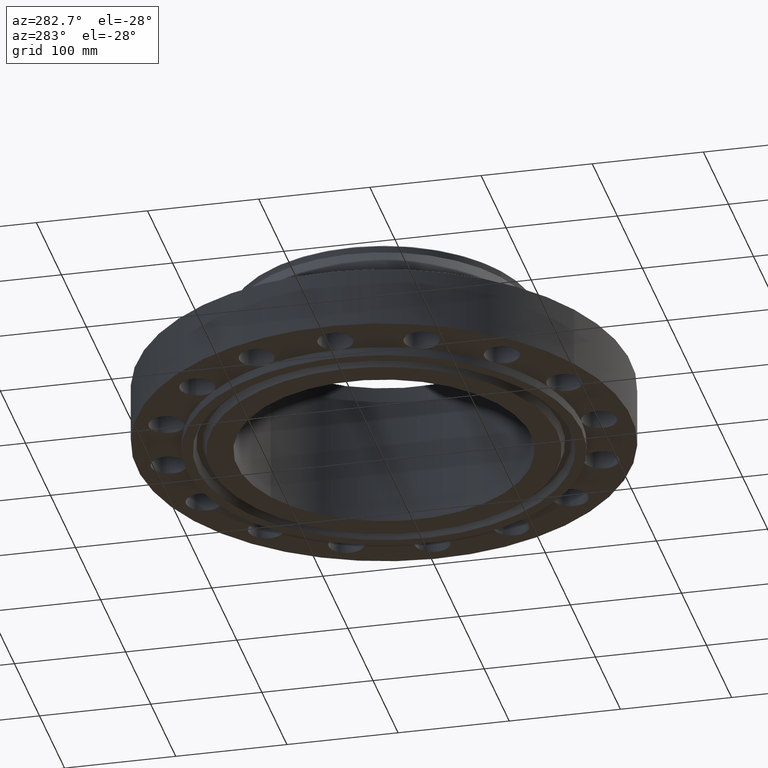
[diagram: clean part render]
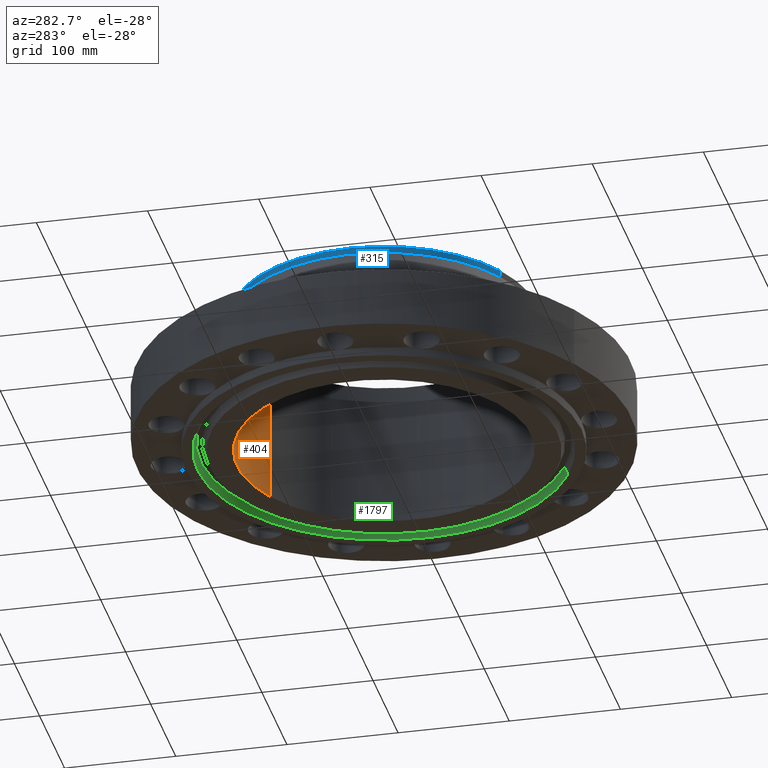
[diagram: same view with three faces highlighted in distinct colors, each labeled with its STEP entity id]
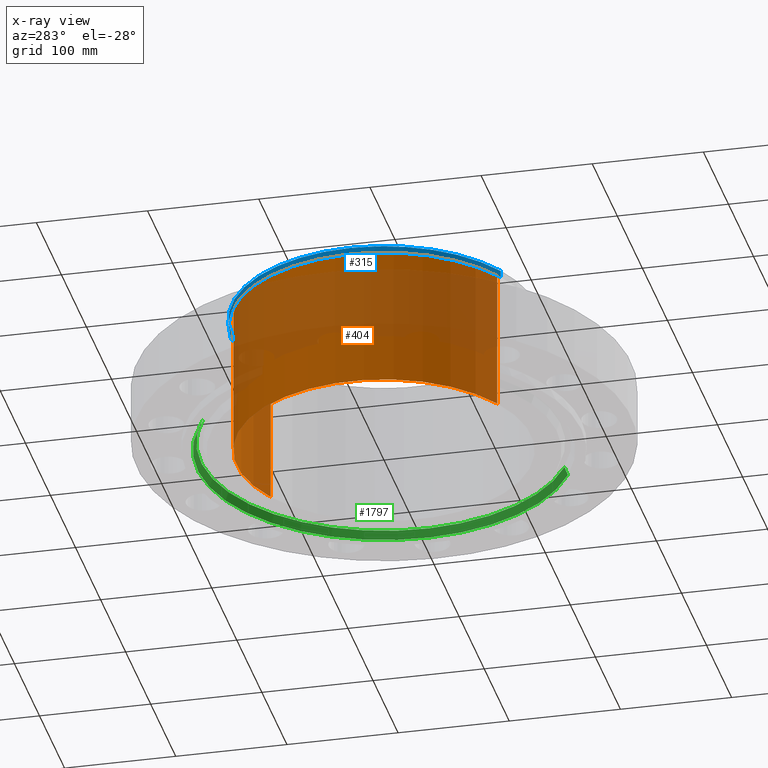
[diagram: x-ray of the same camera — body ghosted, the three highlighted faces saturated]
A machine part, auxiliary view with three faces highlighted in distinct colors.
The next image is the same camera in x-ray (body ghosted, the three faces saturated) — at least one of them is partly hidden behind the body in this view.
Their STEP definitions:

[orange] entity #404 — the highlighted cylindrical surface (partial cylindrical patch) has radius 132.334 mm, axis along (0, 0, -1).
#351=AXIS2_PLACEMENT_3D('Cylinder Axis2P3D',#348,#349,#350) ;
#390=AXIS2_PLACEMENT_3D('Circle Axis2P3D',#388,#389,$) ;
#395=AXIS2_PLACEMENT_3D('Circle Axis2P3D',#393,#394,$) ;
#348=CARTESIAN_POINT('Axis2P3D Location',(0.,0.,2.28350000001)) ;
#357=CARTESIAN_POINT('Vertex',(2.49780705614,4.57220514747,4.88000000002)) ;
#359=CARTESIAN_POINT('Vertex',(-2.49780705614,-4.57220514747,4.88000000002)) ;
#362=CARTESIAN_POINT('Line Origine',(2.49780705614,4.57220514747,2.28350000001)) ;
#366=CARTESIAN_POINT('Vertex',(2.49780705614,4.57220514747,-0.313000000001)) ;
#373=CARTESIAN_POINT('Vertex',(-2.49780705614,-4.57220514747,-0.313000000001)) ;
#376=CARTESIAN_POINT('Line Origine',(-2.49780705614,-4.57220514747,2.28350000001)) ;
#388=CARTESIAN_POINT('Axis2P3D Location',(0.,0.,4.88000000002)) ;
#393=CARTESIAN_POINT('Axis2P3D Location',(0.,0.,-0.313000000001)) ;
#349=DIRECTION('Axis2P3D Direction',(0.,0.,-0.0393700787402)) ;
#350=DIRECTION('Axis2P3D XDirection',(-0.0188750212049,-0.0345504945626,0.)) ;
#363=DIRECTION('Vector Direction',(0.,0.,-0.0393700787402)) ;
#377=DIRECTION('Vector Direction',(0.,0.,-0.0393700787402)) ;
#389=DIRECTION('Axis2P3D Direction',(0.,0.,-0.0393700787402)) ;
#394=DIRECTION('Axis2P3D Direction',(0.,0.,-0.0393700787402)) ;
#364=VECTOR('Line Direction',#363,0.0393700787402) ;
#378=VECTOR('Line Direction',#377,0.0393700787402) ;
#399=ORIENTED_EDGE('',*,*,#392,.F.) ;
#400=ORIENTED_EDGE('',*,*,#380,.T.) ;
#401=ORIENTED_EDGE('',*,*,#397,.T.) ;
#402=ORIENTED_EDGE('',*,*,#368,.F.) ;
#404=ADVANCED_FACE('PartBody',(#403),#352,.F.) ;
#391=CIRCLE('generated circle',#390,5.21000000002) ;
#396=CIRCLE('generated circle',#395,5.21000000002) ;
#352=CYLINDRICAL_SURFACE('generated cylinder',#351,5.21000000002) ;
#368=EDGE_CURVE('',#358,#367,#365,.T.) ;
#380=EDGE_CURVE('',#360,#374,#379,.T.) ;
#392=EDGE_CURVE('',#360,#358,#391,.T.) ;
#397=EDGE_CURVE('',#374,#367,#396,.T.) ;
#398=EDGE_LOOP('',(#399,#400,#401,#402)) ;
#403=FACE_OUTER_BOUND('',#398,.T.) ;
#365=LINE('Line',#362,#364) ;
#379=LINE('Line',#376,#378) ;
#358=VERTEX_POINT('',#357) ;
#360=VERTEX_POINT('',#359) ;
#367=VERTEX_POINT('',#366) ;
#374=VERTEX_POINT('',#373) ;

[blue] entity #315 — the highlighted cylindrical surface (partial cylindrical patch) has radius 136.525 mm, axis along (0, 0, -1).
#247=AXIS2_PLACEMENT_3D('Circle Axis2P3D',#245,#246,$) ;
#260=AXIS2_PLACEMENT_3D('Cylinder Axis2P3D',#257,#258,#259) ;
#298=AXIS2_PLACEMENT_3D('Circle Axis2P3D',#296,#297,$) ;
#305=AXIS2_PLACEMENT_3D('Circle Axis2P3D',#303,#304,$) ;
#223=CARTESIAN_POINT('Vertex',(2.57691227001,4.71700627018,4.57759002243)) ;
#230=CARTESIAN_POINT('Vertex',(-2.57691227001,-4.71700627018,4.57759002243)) ;
#245=CARTESIAN_POINT('Axis2P3D Location',(0.,0.,4.57759002243)) ;
#257=CARTESIAN_POINT('Axis2P3D Location',(0.,0.,2.28350000001)) ;
#262=CARTESIAN_POINT('Line Origine',(-2.57691227001,-4.71700627018,4.69570025865)) ;
#266=CARTESIAN_POINT('Vertex',(-2.57691227001,-4.71700627018,4.81381049487)) ;
#269=CARTESIAN_POINT('Line Origine',(2.57691227001,4.71700627018,4.69570025865)) ;
#273=CARTESIAN_POINT('Vertex',(2.57691227001,4.71700627018,4.81381049487)) ;
#296=CARTESIAN_POINT('Axis2P3D Location',(0.,0.,4.81381049487)) ;
#300=CARTESIAN_POINT('Vertex',(-2.57691227001,4.71700627018,4.81381049487)) ;
#303=CARTESIAN_POINT('Axis2P3D Location',(0.,0.,4.81381049487)) ;
#246=DIRECTION('Axis2P3D Direction',(0.,0.,-0.0393700787402)) ;
#258=DIRECTION('Axis2P3D Direction',(0.,0.,-0.0393700787402)) ;
#259=DIRECTION('Axis2P3D XDirection',(-0.0188750212049,-0.0345504945626,0.)) ;
#263=DIRECTION('Vector Direction',(0.,0.,-0.0393700787402)) ;
#270=DIRECTION('Vector Direction',(0.,0.,-0.0393700787402)) ;
#297=DIRECTION('Axis2P3D Direction',(0.,0.,-0.0393700787402)) ;
#304=DIRECTION('Axis2P3D Direction',(0.,0.,-0.0393700787402)) ;
#264=VECTOR('Line Direction',#263,0.0393700787402) ;
#271=VECTOR('Line Direction',#270,0.0393700787402) ;
#309=ORIENTED_EDGE('',*,*,#275,.F.) ;
#310=ORIENTED_EDGE('',*,*,#249,.F.) ;
#311=ORIENTED_EDGE('',*,*,#268,.T.) ;
#312=ORIENTED_EDGE('',*,*,#302,.F.) ;
#313=ORIENTED_EDGE('',*,*,#307,.T.) ;
#315=ADVANCED_FACE('PartBody',(#314),#261,.T.) ;
#248=CIRCLE('generated circle',#247,5.37500000002) ;
#299=CIRCLE('generated circle',#298,5.37500000002) ;
#306=CIRCLE('generated circle',#305,5.37500000002) ;
#261=CYLINDRICAL_SURFACE('generated cylinder',#260,5.37500000002) ;
#249=EDGE_CURVE('',#231,#224,#248,.T.) ;
#268=EDGE_CURVE('',#231,#267,#265,.F.) ;
#275=EDGE_CURVE('',#224,#274,#272,.F.) ;
#302=EDGE_CURVE('',#301,#267,#299,.F.) ;
#307=EDGE_CURVE('',#301,#274,#306,.T.) ;
#308=EDGE_LOOP('',(#309,#310,#311,#312,#313)) ;
#314=FACE_OUTER_BOUND('',#308,.T.) ;
#265=LINE('Line',#262,#264) ;
#272=LINE('Line',#269,#271) ;
#224=VERTEX_POINT('',#223) ;
#231=VERTEX_POINT('',#230) ;
#267=VERTEX_POINT('',#266) ;
#274=VERTEX_POINT('',#273) ;
#301=VERTEX_POINT('',#300) ;

[green] entity #1797 — the highlighted conical surface has half-angle 23 deg.
#1658=AXIS2_PLACEMENT_3D('Circle Axis2P3D',#1656,#1657,$) ;
#1732=AXIS2_PLACEMENT_3D('Cone Axis2P3D',#1729,#1730,#1731) ;
#1753=AXIS2_PLACEMENT_3D('Circle Axis2P3D',#1751,#1752,$) ;
#1651=CARTESIAN_POINT('Vertex',(3.16876309742,-5.80038194284,-0.313000000001)) ;
#1653=CARTESIAN_POINT('Vertex',(-3.16876309742,5.80038194284,-0.313000000001)) ;
#1656=CARTESIAN_POINT('Axis2P3D Location',(0.,-1.1189649382E-015,-0.313000000001)) ;
#1698=CARTESIAN_POINT('Vertex',(-3.10890997382,5.69082153499,-0.0188873350169)) ;
#1700=CARTESIAN_POINT('Vertex',(3.10890997382,-5.69082153499,-0.0188873350169)) ;
#1729=CARTESIAN_POINT('Axis2P3D Location',(0.,0.,-0.0188873350169)) ;
#1734=CARTESIAN_POINT('Line Origine',(-3.13883653562,5.74560173892,-0.165943667509)) ;
#1739=CARTESIAN_POINT('Line Origine',(3.13883653562,-5.74560173892,-0.165943667509)) ;
#1751=CARTESIAN_POINT('Axis2P3D Location',(0.,0.,-0.0188873350169)) ;
#1657=DIRECTION('Axis2P3D Direction',(0.,0.,-0.0393700787402)) ;
#1730=DIRECTION('Axis2P3D Direction',(-0.,-0.,-0.0393700787402)) ;
#1731=DIRECTION('Axis2P3D XDirection',(-0.0188750212049,0.0345504945626,0.)) ;
#1735=DIRECTION('Vector Direction',(-0.00737505833565,0.0134999537303,-0.0362403485611)) ;
#1740=DIRECTION('Vector Direction',(0.00737505833565,-0.0134999537303,-0.0362403485611)) ;
#1752=DIRECTION('Axis2P3D Direction',(0.,0.,0.0393700787402)) ;
#1736=VECTOR('Line Direction',#1735,0.0393700787402) ;
#1741=VECTOR('Line Direction',#1740,0.0393700787402) ;
#1792=ORIENTED_EDGE('',*,*,#1660,.T.) ;
#1793=ORIENTED_EDGE('',*,*,#1743,.T.) ;
#1794=ORIENTED_EDGE('',*,*,#1755,.T.) ;
#1795=ORIENTED_EDGE('',*,*,#1738,.F.) ;
#1797=ADVANCED_FACE('PartBody',(#1796),#1733,.F.) ;
#1659=CIRCLE('generated circle',#1658,6.60950000003) ;
#1754=CIRCLE('generated circle',#1753,6.48465658061) ;
#1733=CONICAL_SURFACE('Cone',#1732,6.48465658061,0.401425727959) ;
#1660=EDGE_CURVE('',#1654,#1652,#1659,.T.) ;
#1738=EDGE_CURVE('',#1654,#1699,#1737,.F.) ;
#1743=EDGE_CURVE('',#1652,#1701,#1742,.F.) ;
#1755=EDGE_CURVE('',#1701,#1699,#1754,.T.) ;
#1791=EDGE_LOOP('',(#1792,#1793,#1794,#1795)) ;
#1796=FACE_OUTER_BOUND('',#1791,.T.) ;
#1737=LINE('Line',#1734,#1736) ;
#1742=LINE('Line',#1739,#1741) ;
#1652=VERTEX_POINT('',#1651) ;
#1654=VERTEX_POINT('',#1653) ;
#1699=VERTEX_POINT('',#1698) ;
#1701=VERTEX_POINT('',#1700) ;